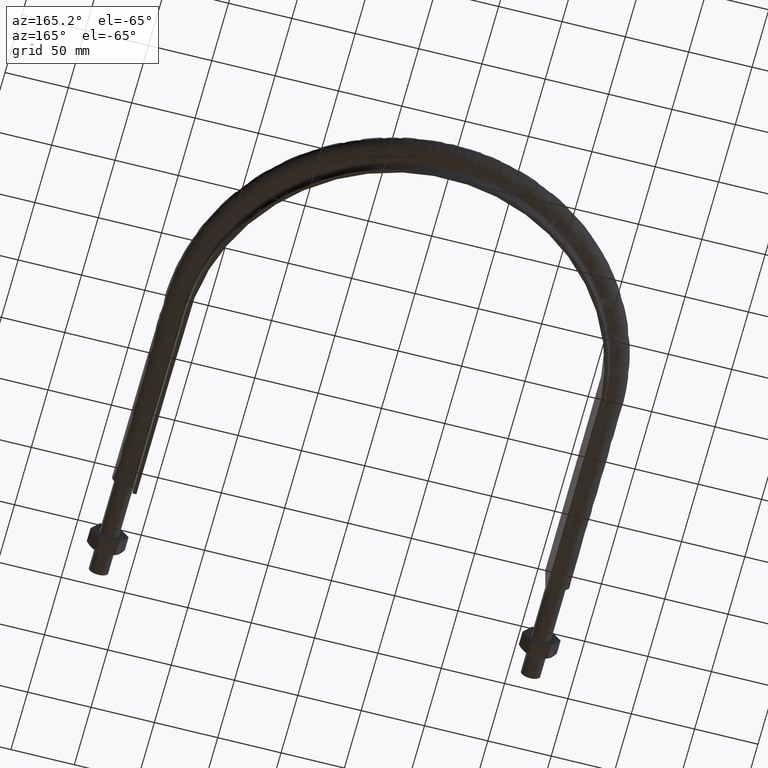
[diagram: clean part render]
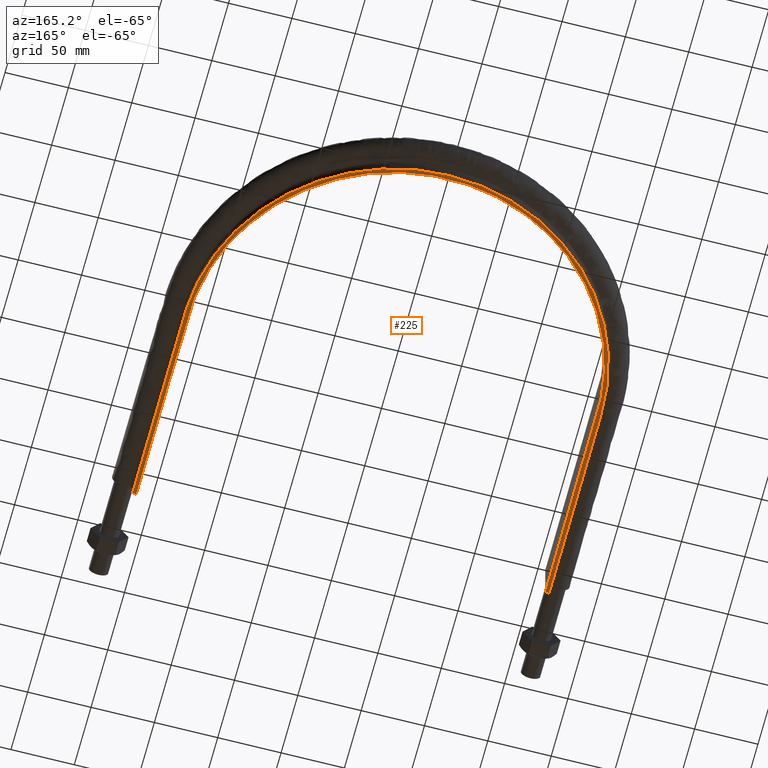
[diagram: same view with one face highlighted and labeled with its STEP entity id]
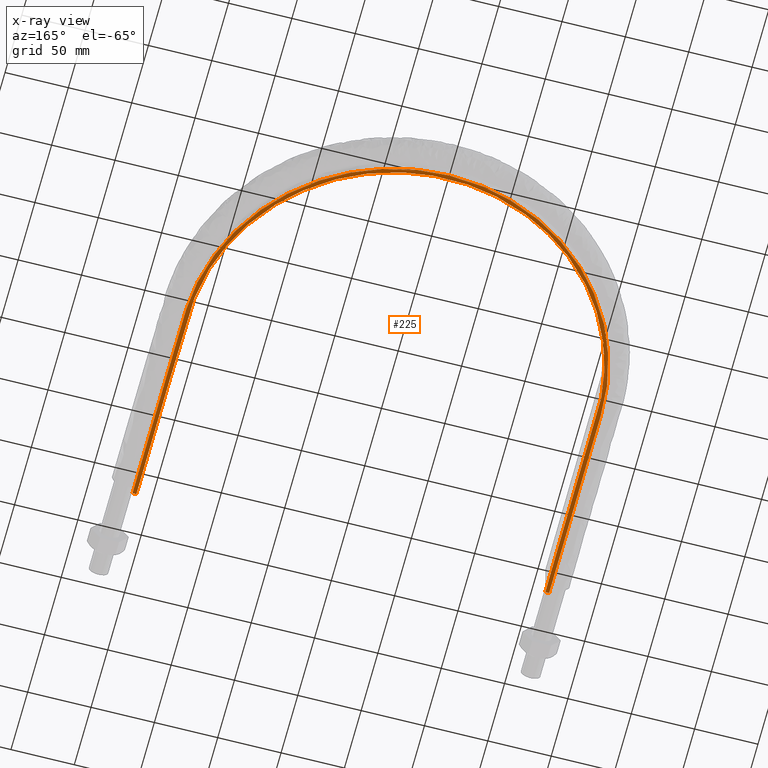
[diagram: x-ray of the same camera — body ghosted, the highlighted face saturated]
A machine part, auxiliary view. The second image highlights one B-rep face of the part: STEP entity #225.
The next image is the same camera in x-ray: the body ghosted, the highlighted face saturated — about 0% of this face is hidden behind the body in this view.
In plain terms, the highlighted planar face has unit normal (0, 0, 1).
Its self-contained STEP definition (entity closure, byte-faithful):
#225 = ADVANCED_FACE( '', ( #274 ), #275, .F. );
#274 = FACE_OUTER_BOUND( '', #952, .T. );
#275 = PLANE( '', #953 );
#952 = EDGE_LOOP( '', ( #1709, #1710, #1711, #1712 ) );
#953 = AXIS2_PLACEMENT_3D( '', #1713, #1714, #1715 );
#1709 = ORIENTED_EDGE( '', *, *, #1938, .F. );
#1710 = ORIENTED_EDGE( '', *, *, #1936, .F. );
#1711 = ORIENTED_EDGE( '', *, *, #1931, .T. );
#1712 = ORIENTED_EDGE( '', *, *, #1928, .F. );
#1713 = CARTESIAN_POINT( '', ( 200.000000000000, 478.510000000000, -20.0000000000000 ) );
#1714 = DIRECTION( '', ( 0.000000000000000, 0.000000000000000, 1.00000000000000 ) );
#1715 = DIRECTION( '', ( 1.22460635382238E-016, 1.00000000000000, 0.000000000000000 ) );
#1928 = EDGE_CURVE( '', #2006, #2009, #2010, .T. );
#1931 = EDGE_CURVE( '', #2013, #2009, #2014, .T. );
#1936 = EDGE_CURVE( '', #2013, #2018, #2022, .T. );
#1938 = EDGE_CURVE( '', #2018, #2006, #2024, .T. );
#2006 = VERTEX_POINT( '', #2462 );
#2009 = VERTEX_POINT( '', #2466 );
#2010 = LINE( '', #2467, #2468 );
#2013 = VERTEX_POINT( '', #2473 );
#2014 = B_SPLINE_CURVE_WITH_KNOTS( '', 3, ( #2474, #2475, #2476, #2477, #2478, #2479, #2480, #2481, #2482, #2483, #2484, #2485, #2486, #2487, #2488, #2489, #2490, #2491, #2492, #2493, #2494, #2495, #2496, #2497, #2498, #2499, #2500, #2501, #2502, #2503, #2504, #2505, #2506, #2507, #2508, #2509, #2510, #2511, #2512, #2513, #2514, #2515, #2516, #2517, #2518, #2519, #2520, #2521, #2522, #2523, #2524, #2525, #2526, #2527, #2528, #2529, #2530, #2531, #2532, #2533, #2534, #2535, #2536, #2537, #2538, #2539, #2540, #2541, #2542, #2543, #2544, #2545, #2546, #2547, #2548, #2549, #2550, #2551, #2552, #2553, #2554, #2555, #2556, #2557, #2558, #2559, #2560, #2561, #2562, #2563, #2564, #2565, #2566, #2567, #2568, #2569, #2570, #2571, #2572, #2573, #2574, #2575, #2576, #2577, #2578, #2579, #2580, #2581, #2582, #2583, #2584, #2585, #2586, #2587, #2588, #2589, #2590, #2591, #2592, #2593, #2594, #2595, #2596, #2597, #2598, #2599, #2600, #2601, #2602, #2603, #2604 ), .UNSPECIFIED., .F., .F., ( 4, 1, 1, 1, 1, 2, 2, 2, 2, 2, 2, 2, 2, 2, 2, 2, 2, 2, 2, 2, 2, 2, 2, 2, 2, 2, 2, 2, 2, 2, 2, 2, 2, 2, 2, 2, 2, 2, 2, 2, 2, 2, 2, 2, 2, 2, 2, 2, 2, 2, 2, 2, 2, 2, 2, 2, 1, 2, 2, 2, 2, 2, 2, 2, 2, 1, 1, 1, 1, 4 ), ( 2.77555756156289E-017, 0.104054729085103, 0.130068411356378, 0.143075252492016, 0.149578673059835, 0.152830383343744, 0.156082093627654, 0.159333803911563, 0.162585514195473, 0.169088934763292, 0.182095775898929, 0.195102617034567, 0.208109458170204, 0.221116299305842, 0.227619719873661, 0.234123140441480, 0.247129981577118, 0.260136822712756, 0.273143663848393, 0.276395374132303, 0.279647084416212, 0.286150504984031, 0.299157346119668, 0.312164187255306, 0.325171028390943, 0.331674448958762, 0.334926159242671, 0.338177869526581, 0.351184710662218, 0.364191551797856, 0.377198392933494, 0.383701813501312, 0.386953523785222, 0.390205234069131, 0.403212075204769, 0.416218916340407, 0.429225757476045, 0.442232598611682, 0.448736019179501, 0.455239439747320, 0.468246280882958, 0.481253122018596, 0.494259963154234, 0.500763383722053, 0.507266804289871, 0.520273645425509, 0.533280486561147, 0.546287327696785, 0.552790748264604, 0.556042458548513, 0.559294168832423, 0.572301009968061, 0.585307851103699, 0.598314692239338, 0.611321533374976, 0.614573243658886, 0.617824953942795, 0.624328374510615, 0.637335215646253, 0.650342056781891, 0.663348897917529, 0.669852318485348, 0.673104028769258, 0.676355739053168, 0.679607449337077, 0.682859159620987, 0.689362580188806, 0.702369421324444, 0.728383103595721, 0.832437832680827 ), .UNSPECIFIED. );
#2018 = VERTEX_POINT( '', #2619 );
#2022 = LINE( '', #2625, #2626 );
#2024 = B_SPLINE_CURVE_WITH_KNOTS( '', 3, ( #2645, #2646, #2647, #2648, #2649, #2650, #2651, #2652, #2653, #2654, #2655, #2656, #2657, #2658, #2659, #2660, #2661, #2662 ), .UNSPECIFIED., .F., .F., ( 4, 3, 1, 1, 1, 1, 1, 1, 1, 1, 3, 4 ), ( -11.0000000000000, -10.0000000000000, -9.00000000000000, -8.00000000000000, -7.00000000000000, -6.00000000000000, -5.00000000000000, -4.00000000000000, -3.00000000000000, -2.00000000000000, -1.00000000000000, 0.000000000000000 ), .UNSPECIFIED. );
#2462 = CARTESIAN_POINT( '', ( 161.400000000000, 78.5100000000000, -20.0000000000000 ) );
#2466 = CARTESIAN_POINT( '', ( 164.400000000000, 78.5100000000000, -20.0000000000000 ) );
#2467 = CARTESIAN_POINT( '', ( -200.000000000000, 78.5100000000001, -20.0000000000000 ) );
#2468 = VECTOR( '', #2934, 1000.00000000000 );
#2473 = CARTESIAN_POINT( '', ( -164.400000000000, 78.5100000000001, -20.0000000000000 ) );
#2474 = CARTESIAN_POINT( '', ( -164.400000000000, 78.5100000000001, -20.0000000000000 ) );
#2475 = CARTESIAN_POINT( '', ( -164.400000000000, 113.194956691566, -20.0000000000000 ) );
#2476 = CARTESIAN_POINT( '', ( -164.400000000000, 156.551152556023, -20.0000000000000 ) );
#2477 = CARTESIAN_POINT( '', ( -164.400000000000, 204.242968006925, -20.0000000000000 ) );
#2478 = CARTESIAN_POINT( '', ( -164.400000000000, 219.417636559485, -20.0000000000000 ) );
#2479 = CARTESIAN_POINT( '', ( -164.400000000000, 227.004970835765, -20.0000000000000 ) );
#2480 = CARTESIAN_POINT( '', ( -164.400000000000, 230.256685525599, -20.0000000000000 ) );
#2481 = CARTESIAN_POINT( '', ( -164.400000000000, 232.424495318822, -20.0000000000000 ) );
#2482 = CARTESIAN_POINT( '', ( -164.401112814939, 233.508402047329, -20.0000000000000 ) );
#2483 = CARTESIAN_POINT( '', ( -164.397791436545, 235.676206372960, -20.0000000000000 ) );
#2484 = CARTESIAN_POINT( '', ( -164.389397229220, 236.760097451181, -20.0000000000000 ) );
#2485 = CARTESIAN_POINT( '', ( -164.346347317781, 238.927836376429, -20.0000000000000 ) );
#2486 = CARTESIAN_POINT( '', ( -164.314015247172, 240.011688048578, -20.0000000000000 ) );
#2487 = CARTESIAN_POINT( '', ( -164.184658021982, 243.263189792919, -20.0000000000000 ) );
#2488 = CARTESIAN_POINT( '', ( -164.054986387869, 245.432649531974, -20.0000000000000 ) );
#2489 = CARTESIAN_POINT( '', ( -163.540089866603, 251.903443163600, -20.0000000000000 ) );
#2490 = CARTESIAN_POINT( '', ( -163.028857186243, 256.178647842775, -20.0000000000000 ) );
#2491 = CARTESIAN_POINT( '', ( -161.680784922929, 264.654119101835, -20.0000000000000 ) );
#2492 = CARTESIAN_POINT( '', ( -160.843839994310, 268.854361436522, -20.0000000000000 ) );
#2493 = CARTESIAN_POINT( '', ( -158.845991034652, 277.180287246151, -20.0000000000000 ) );
#2494 = CARTESIAN_POINT( '', ( -157.684954010363, 281.305940112830, -20.0000000000000 ) );
#2495 = CARTESIAN_POINT( '', ( -155.032434907614, 289.481194251208, -20.0000000000000 ) );
#2496 = CARTESIAN_POINT( '', ( -153.540637667281, 293.530722988721, -20.0000000000000 ) );
#2497 = CARTESIAN_POINT( '', ( -151.046446265382, 299.545983905575, -20.0000000000000 ) );
#2498 = CARTESIAN_POINT( '', ( -150.176639375757, 301.530591569493, -20.0000000000000 ) );
#2499 = CARTESIAN_POINT( '', ( -148.365677489268, 305.451034189664, -20.0000000000000 ) );
#2500 = CARTESIAN_POINT( '', ( -147.423966722706, 307.388338955483, -20.0000000000000 ) );
#2501 = CARTESIAN_POINT( '', ( -144.492313373278, 313.132875216603, -20.0000000000000 ) );
#2502 = CARTESIAN_POINT( '', ( -142.395491839975, 316.872502291715, -20.0000000000000 ) );
#2503 = CARTESIAN_POINT( '', ( -137.921089039277, 324.174166757923, -20.0000000000000 ) );
#2504 = CARTESIAN_POINT( '', ( -135.543392362294, 327.736131148692, -20.0000000000000 ) );
#2505 = CARTESIAN_POINT( '', ( -130.504111697188, 334.680491951780, -20.0000000000000 ) );
#2506 = CARTESIAN_POINT( '', ( -127.842299055254, 338.062743733108, -20.0000000000000 ) );
#2507 = CARTESIAN_POINT( '', ( -124.331524748112, 342.174483348522, -20.0000000000000 ) );
#2508 = CARTESIAN_POINT( '', ( -123.620193252742, 342.991026751497, -20.0000000000000 ) );
#2509 = CARTESIAN_POINT( '', ( -122.179027254974, 344.612409802341, -20.0000000000000 ) );
#2510 = CARTESIAN_POINT( '', ( -121.449202472707, 345.417189981225, -20.0000000000000 ) );
#2511 = CARTESIAN_POINT( '', ( -119.241901422662, 347.803147571144, -20.0000000000000 ) );
#2512 = CARTESIAN_POINT( '', ( -117.743364650805, 349.359649553347, -20.0000000000000 ) );
#2513 = CARTESIAN_POINT( '', ( -113.168603753494, 353.929094656276, -20.0000000000000 ) );
#2514 = CARTESIAN_POINT( '', ( -110.013226002109, 356.841973084908, -20.0000000000000 ) );
#2515 = CARTESIAN_POINT( '', ( -103.496070778988, 362.406802862434, -20.0000000000000 ) );
#2516 = CARTESIAN_POINT( '', ( -100.134198242753, 365.058634032373, -20.0000000000000 ) );
#2517 = CARTESIAN_POINT( '', ( -93.2034983802277, 370.100667582661, -20.0000000000000 ) );
#2518 = CARTESIAN_POINT( '', ( -89.6348208454345, 372.491059326918, -20.0000000000000 ) );
#2519 = CARTESIAN_POINT( '', ( -84.1216642835689, 375.874200301249, -20.0000000000000 ) );
#2520 = CARTESIAN_POINT( '', ( -82.2572525184671, 376.968169226840, -20.0000000000000 ) );
#2521 = CARTESIAN_POINT( '', ( -79.4199251739016, 378.557658096212, -20.0000000000000 ) );
#2522 = CARTESIAN_POINT( '', ( -78.4664937880051, 379.079355636745, -20.0000000000000 ) );
#2523 = CARTESIAN_POINT( '', ( -76.5540001382405, 380.101226290090, -20.0000000000000 ) );
#2524 = CARTESIAN_POINT( '', ( -75.5941946256136, 380.601833763861, -20.0000000000000 ) );
#2525 = CARTESIAN_POINT( '', ( -70.7776054635643, 383.053904702580, -20.0000000000000 ) );
#2526 = CARTESIAN_POINT( '', ( -66.8682015972558, 384.852656297690, -20.0000000000000 ) );
#2527 = CARTESIAN_POINT( '', ( -58.9404340251242, 388.133941467265, -20.0000000000000 ) );
#2528 = CARTESIAN_POINT( '', ( -54.9221074398526, 389.616582771216, -20.0000000000000 ) );
#2529 = CARTESIAN_POINT( '', ( -46.7771352731513, 392.267507183327, -20.0000000000000 ) );
#2530 = CARTESIAN_POINT( '', ( -42.6507752742862, 393.436619095512, -20.0000000000000 ) );
#2531 = CARTESIAN_POINT( '', ( -36.3779362801235, 394.948540612918, -20.0000000000000 ) );
#2532 = CARTESIAN_POINT( '', ( -34.2731054845814, 395.412219626068, -20.0000000000000 ) );
#2533 = CARTESIAN_POINT( '', ( -31.0947095102925, 396.046358265766, -20.0000000000000 ) );
#2534 = CARTESIAN_POINT( '', ( -30.0317191361268, 396.247507583013, -20.0000000000000 ) );
#2535 = CARTESIAN_POINT( '', ( -27.8986333936934, 396.629186444372, -20.0000000000000 ) );
#2536 = CARTESIAN_POINT( '', ( -26.8273434139472, 396.809901238470, -20.0000000000000 ) );
#2537 = CARTESIAN_POINT( '', ( -21.4696015124295, 397.658929575961, -20.0000000000000 ) );
#2538 = CARTESIAN_POINT( '', ( -17.1843900398018, 398.163087914421, -20.0000000000000 ) );
#2539 = CARTESIAN_POINT( '', ( -8.61585586475806, 398.834704046002, -20.0000000000000 ) );
#2540 = CARTESIAN_POINT( '', ( -4.33253349702278, 399.002102177490, -20.0000000000000 ) );
#2541 = CARTESIAN_POINT( '', ( 4.23224776209774, 399.004706890968, -20.0000000000000 ) );
#2542 = CARTESIAN_POINT( '', ( 8.51370656733014, 398.839898114999, -20.0000000000000 ) );
#2543 = CARTESIAN_POINT( '', ( 17.0747401533941, 398.174426027001, -20.0000000000000 ) );
#2544 = CARTESIAN_POINT( '', ( 21.3543151187181, 397.673795603420, -20.0000000000000 ) );
#2545 = CARTESIAN_POINT( '', ( 27.7722131616382, 396.661798633604, -20.0000000000000 ) );
#2546 = CARTESIAN_POINT( '', ( 29.9140086384630, 396.280063374137, -20.0000000000000 ) );
#2547 = CARTESIAN_POINT( '', ( 34.1597071945933, 395.435755209705, -20.0000000000000 ) );
#2548 = CARTESIAN_POINT( '', ( 36.2679191606568, 394.972624095616, -20.0000000000000 ) );
#2549 = CARTESIAN_POINT( '', ( 42.5495878486243, 393.462944409614, -20.0000000000000 ) );
#2550 = CARTESIAN_POINT( '', ( 46.6801348271460, 392.296270371902, -20.0000000000000 ) );
#2551 = CARTESIAN_POINT( '', ( 54.8292840046192, 389.649533827342, -20.0000000000000 ) );
#2552 = CARTESIAN_POINT( '', ( 58.8478709900223, 388.169428730292, -20.0000000000000 ) );
#2553 = CARTESIAN_POINT( '', ( 66.7727743121221, 384.894917799151, -20.0000000000000 ) );
#2554 = CARTESIAN_POINT( '', ( 70.6791112233391, 383.100569563255, -20.0000000000000 ) );
#2555 = CARTESIAN_POINT( '', ( 76.4520718313732, 380.166765884874, -20.0000000000000 ) );
#2556 = CARTESIAN_POINT( '', ( 78.3619473175650, 379.148393463066, -20.0000000000000 ) );
#2557 = CARTESIAN_POINT( '', ( 82.1521398445218, 377.028900000017, -20.0000000000000 ) );
#2558 = CARTESIAN_POINT( '', ( 84.0218361506175, 375.933662305826, -20.0000000000000 ) );
#2559 = CARTESIAN_POINT( '', ( 89.5459979753048, 372.549008376613, -20.0000000000000 ) );
#2560 = CARTESIAN_POINT( '', ( 93.1199772103756, 370.158194645052, -20.0000000000000 ) );
#2561 = CARTESIAN_POINT( '', ( 100.057978294400, 365.117239772002, -20.0000000000000 ) );
#2562 = CARTESIAN_POINT( '', ( 103.421801536316, 362.466853322406, -20.0000000000000 ) );
#2563 = CARTESIAN_POINT( '', ( 109.940193148707, 356.907620719418, -20.0000000000000 ) );
#2564 = CARTESIAN_POINT( '', ( 113.094804278784, 353.998827380252, -20.0000000000000 ) );
#2565 = CARTESIAN_POINT( '', ( 117.666768975033, 349.438073768972, -20.0000000000000 ) );
#2566 = CARTESIAN_POINT( '', ( 119.164117876873, 347.884919181140, -20.0000000000000 ) );
#2567 = CARTESIAN_POINT( '', ( 121.369267704188, 345.504702647796, -20.0000000000000 ) );
#2568 = CARTESIAN_POINT( '', ( 122.097504670182, 344.702882136056, -20.0000000000000 ) );
#2569 = CARTESIAN_POINT( '', ( 123.540195090079, 343.082216503172, -20.0000000000000 ) );
#2570 = CARTESIAN_POINT( '', ( 124.254377380732, 342.263630681842, -20.0000000000000 ) );
#2571 = CARTESIAN_POINT( '', ( 127.774789921489, 338.146514758161, -20.0000000000000 ) );
#2572 = CARTESIAN_POINT( '', ( 130.442435347832, 334.761097001746, -20.0000000000000 ) );
#2573 = CARTESIAN_POINT( '', ( 135.490619375250, 327.813142423089, -20.0000000000000 ) );
#2574 = CARTESIAN_POINT( '', ( 137.871345881554, 324.250721521459, -20.0000000000000 ) );
#2575 = CARTESIAN_POINT( '', ( 142.349926805872, 316.951373103877, -20.0000000000000 ) );
#2576 = CARTESIAN_POINT( '', ( 144.447832885230, 313.214477458324, -20.0000000000000 ) );
#2577 = CARTESIAN_POINT( '', ( 148.357643246085, 305.564248803827, -20.0000000000000 ) );
#2578 = CARTESIAN_POINT( '', ( 150.170208090246, 301.651323302584, -20.0000000000000 ) );
#2579 = CARTESIAN_POINT( '', ( 152.249962193091, 296.645450810826, -20.0000000000000 ) );
#2580 = CARTESIAN_POINT( '', ( 152.656898188070, 295.637746950875, -20.0000000000000 ) );
#2581 = CARTESIAN_POINT( '', ( 153.448598221970, 293.619489616340, -20.0000000000000 ) );
#2582 = CARTESIAN_POINT( '', ( 154.604082453025, 290.585090430424, -20.0000000000000 ) );
#2583 = CARTESIAN_POINT( '', ( 155.664224929572, 287.529838845210, -20.0000000000000 ) );
#2584 = CARTESIAN_POINT( '', ( 157.659619292074, 281.392020586268, -20.0000000000000 ) );
#2585 = CARTESIAN_POINT( '', ( 158.823627411515, 277.263779806072, -20.0000000000000 ) );
#2586 = CARTESIAN_POINT( '', ( 160.826483259108, 268.936181720188, -20.0000000000000 ) );
#2587 = CARTESIAN_POINT( '', ( 161.665372921473, 264.736833586022, -20.0000000000000 ) );
#2588 = CARTESIAN_POINT( '', ( 163.017050638177, 256.266814936675, -20.0000000000000 ) );
#2589 = CARTESIAN_POINT( '', ( 163.530043425186, 251.996189199013, -20.0000000000000 ) );
#2590 = CARTESIAN_POINT( '', ( 164.048104978438, 245.535260317745, -20.0000000000000 ) );
#2591 = CARTESIAN_POINT( '', ( 164.178967102381, 243.370129820416, -20.0000000000000 ) );
#2592 = CARTESIAN_POINT( '', ( 164.310513690544, 240.116451581563, -20.0000000000000 ) );
#2593 = CARTESIAN_POINT( '', ( 164.343561000333, 239.031880269039, -20.0000000000000 ) );
#2594 = CARTESIAN_POINT( '', ( 164.388013795318, 236.862713802188, -20.0000000000000 ) );
#2595 = CARTESIAN_POINT( '', ( 164.397282425713, 235.778116293786, -20.0000000000000 ) );
#2596 = CARTESIAN_POINT( '', ( 164.401463363768, 233.608905461283, -20.0000000000000 ) );
#2597 = CARTESIAN_POINT( '', ( 164.400000000000, 232.524296129938, -20.0000000000000 ) );
#2598 = CARTESIAN_POINT( '', ( 164.400000000000, 230.355080691488, -20.0000000000000 ) );
#2599 = CARTESIAN_POINT( '', ( 164.400000000000, 227.101257533813, -20.0000000000000 ) );
#2600 = CARTESIAN_POINT( '', ( 164.400000000000, 219.509003499239, -20.0000000000000 ) );
#2601 = CARTESIAN_POINT( '', ( 164.400000000000, 204.324495430090, -20.0000000000000 ) );
#2602 = CARTESIAN_POINT( '', ( 164.400000000000, 156.601755784194, -20.0000000000000 ) );
#2603 = CARTESIAN_POINT( '', ( 164.400000000000, 113.217447015197, -20.0000000000000 ) );
#2604 = CARTESIAN_POINT( '', ( 164.400000000000, 78.5100000000000, -20.0000000000000 ) );
#2619 = CARTESIAN_POINT( '', ( -161.400000000000, 78.5100000000001, -20.0000000000000 ) );
#2625 = CARTESIAN_POINT( '', ( -200.000000000000, 78.5100000000001, -20.0000000000000 ) );
#2626 = VECTOR( '', #2940, 1000.00000000000 );
#2645 = CARTESIAN_POINT( '', ( -161.400000000000, 78.5100000000001, -20.0000000000000 ) );
#2646 = CARTESIAN_POINT( '', ( -161.400000000000, 130.543333333333, -20.0000000000000 ) );
#2647 = CARTESIAN_POINT( '', ( -161.400000000000, 182.576666666667, -20.0000000000000 ) );
#2648 = CARTESIAN_POINT( '', ( -161.400000000000, 234.610000000000, -20.0000000000000 ) );
#2649 = CARTESIAN_POINT( '', ( -161.400000000000, 253.377198593415, -20.0000000000000 ) );
#2650 = CARTESIAN_POINT( '', ( -154.777803559236, 290.949605256109, -20.0000000000000 ) );
#2651 = CARTESIAN_POINT( '', ( -126.176021511748, 340.482890510073, -20.0000000000000 ) );
#2652 = CARTESIAN_POINT( '', ( -82.3555491101910, 377.254353924046, -20.0000000000000 ) );
#2653 = CARTESIAN_POINT( '', ( -28.6017820474880, 396.818694818595, -20.0000000000000 ) );
#2654 = CARTESIAN_POINT( '', ( 28.6017820474882, 396.818694818595, -20.0000000000000 ) );
#2655 = CARTESIAN_POINT( '', ( 82.3555491101912, 377.254353924046, -20.0000000000000 ) );
#2656 = CARTESIAN_POINT( '', ( 126.176021511748, 340.482890510073, -20.0000000000000 ) );
#2657 = CARTESIAN_POINT( '', ( 154.777803559236, 290.949605256109, -20.0000000000000 ) );
#2658 = CARTESIAN_POINT( '', ( 161.400000000000, 253.377198593415, -20.0000000000000 ) );
#2659 = CARTESIAN_POINT( '', ( 161.400000000000, 234.610000000000, -20.0000000000000 ) );
#2660 = CARTESIAN_POINT( '', ( 161.400000000000, 182.576666666667, -20.0000000000000 ) );
#2661 = CARTESIAN_POINT( '', ( 161.400000000000, 130.543333333333, -20.0000000000000 ) );
#2662 = CARTESIAN_POINT( '', ( 161.400000000000, 78.5100000000000, -20.0000000000000 ) );
#2934 = DIRECTION( '', ( 1.00000000000000, -1.22460635382238E-016, 0.000000000000000 ) );
#2940 = DIRECTION( '', ( 1.00000000000000, -1.22460635382238E-016, 0.000000000000000 ) );